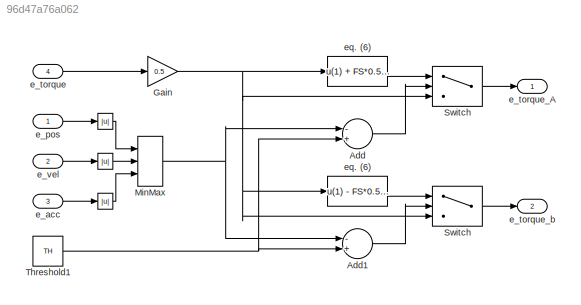
MODEL slx_96d47a76a062
KIND model
CONFIG AbsTol = auto
CONFIG FixedStep = auto
CONFIG MaxStep = auto
CONFIG MinStep = auto
CONFIG RelTol = 1e-3
CONFIG SampleTimeConstraint = Unconstrained
CONFIG Solver = VariableStepAuto
CONFIG SolverMode = Auto
CONFIG SolverName = VariableStepAuto
CONFIG StartTime = 0.0
CONFIG StopTime = 10.0
BLOCK [Abs]  
  SaturateOnIntegerOverflow = off
BLOCK [Abs]   
  SaturateOnIntegerOverflow = off
BLOCK [Abs]    
  SaturateOnIntegerOverflow = off
BLOCK [Switch]  Switch 
  Criteria = u2 > Threshold
  InputSameDT = off
  SaturateOnIntegerOverflow = off
BLOCK [Fcn]  eq. (6) 
  Expr = u(1) + FS*0.5*(1+cos(u(1)*pi/TH))
BLOCK [Sum] Add
  InputSameDT = off
  Inputs = -+
  OutDataTypeStr = Inherit: Inherit via internal rule
  Ports = [2, 1]
  SaturateOnIntegerOverflow = off
BLOCK [Sum] Add1
  InputSameDT = off
  Inputs = -+
  OutDataTypeStr = Inherit: Inherit via internal rule
  Ports = [2, 1]
  SaturateOnIntegerOverflow = off
BLOCK [Gain] Gain
  Gain = 0.5
  OutDataTypeStr = Inherit: Inherit via internal rule
  ParamDataTypeStr = Inherit: Inherit via internal rule
  SaturateOnIntegerOverflow = off
BLOCK [MinMax] MinMax
  InputSameDT = off
  Inputs = 3
  Ports = [3, 1]
  SaturateOnIntegerOverflow = off
BLOCK [Switch] Switch
  Criteria = u2 > Threshold
  InputSameDT = off
  SaturateOnIntegerOverflow = off
BLOCK [Constant] Threshold1
  Value = TH
BLOCK [Inport] e_acc
  IconDisplay = Port number
  Port = 3
BLOCK [Inport] e_pos
  IconDisplay = Port number
BLOCK [Inport] e_torque
  IconDisplay = Port number
  Port = 4
BLOCK [Outport] e_torque_A
  IconDisplay = Port number
BLOCK [Outport] e_torque_b
  IconDisplay = Port number
  Port = 2
BLOCK [Inport] e_vel 
  IconDisplay = Port number
  Port = 2
BLOCK [Fcn] eq. (6)
  Expr = u(1) - FS*0.5*(1+cos(u(1)*pi/TH))
LINE    :1 -> MinMax:2
LINE   :1 -> MinMax:3
LINE  :1 -> MinMax:1
LINE  Switch :1 -> e_torque_b:1
LINE  eq. (6) :1 -> Switch:1
LINE Add1:1 ->  Switch :2
LINE Add:1 -> Switch:2
NET Gain:1 ->  Switch :3,  eq. (6) :1, Switch:3, eq. (6):1
NET MinMax:1 -> Add1:1, Add:1
LINE Switch:1 -> e_torque_A:1
NET Threshold1:1 -> Add1:2, Add:2
LINE e_acc:1 ->   :1
LINE e_pos:1 ->  :1
LINE e_torque:1 -> Gain:1
LINE e_vel :1 ->    :1
LINE eq. (6):1 ->  Switch :1
note: NET lines group one-source signal fan-out (src -> all destinations, sorted); 1:1 wires keep LINE
